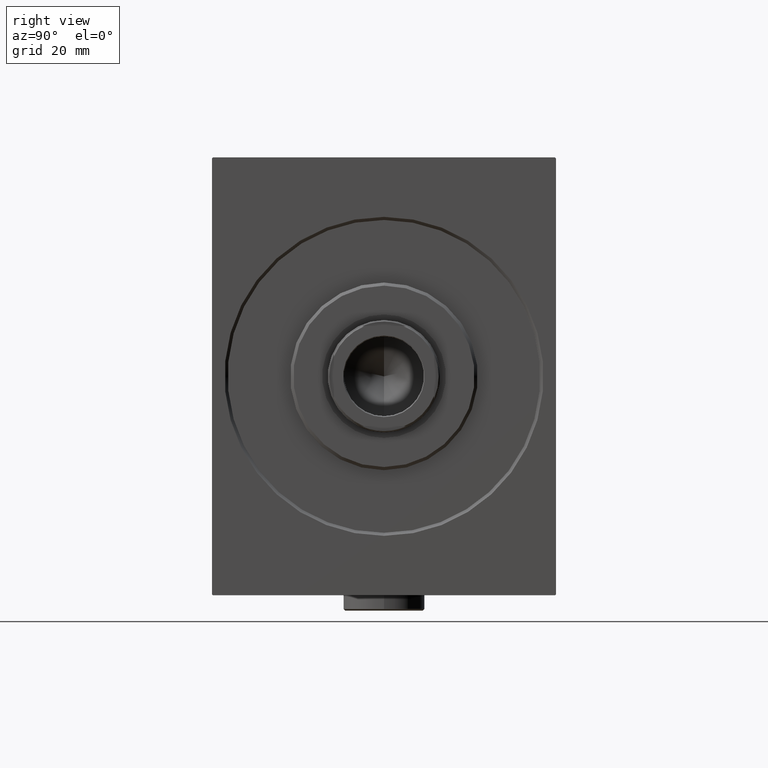
[diagram: clean part render]
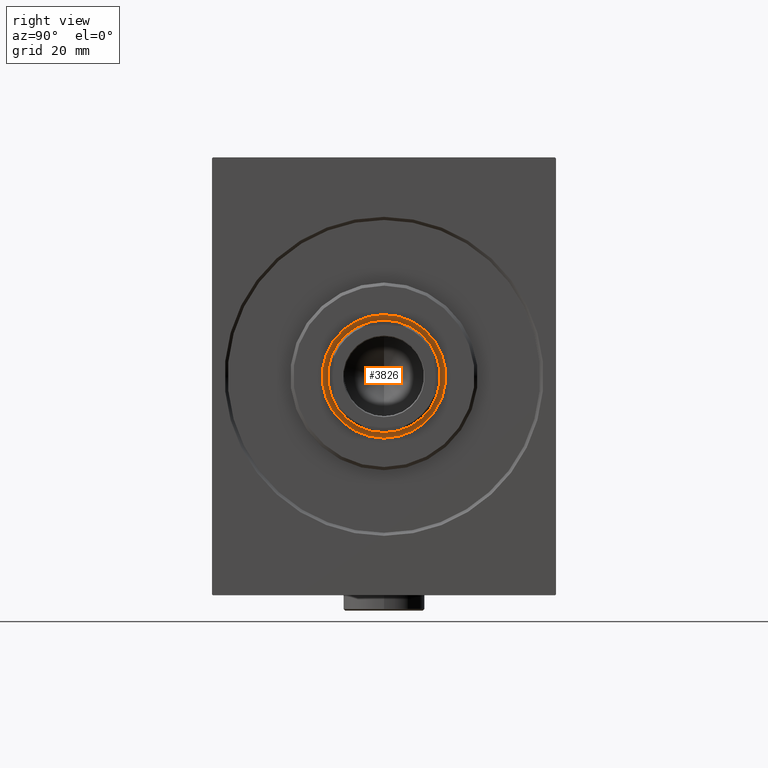
[diagram: same view with one face highlighted and labeled with its STEP entity id]
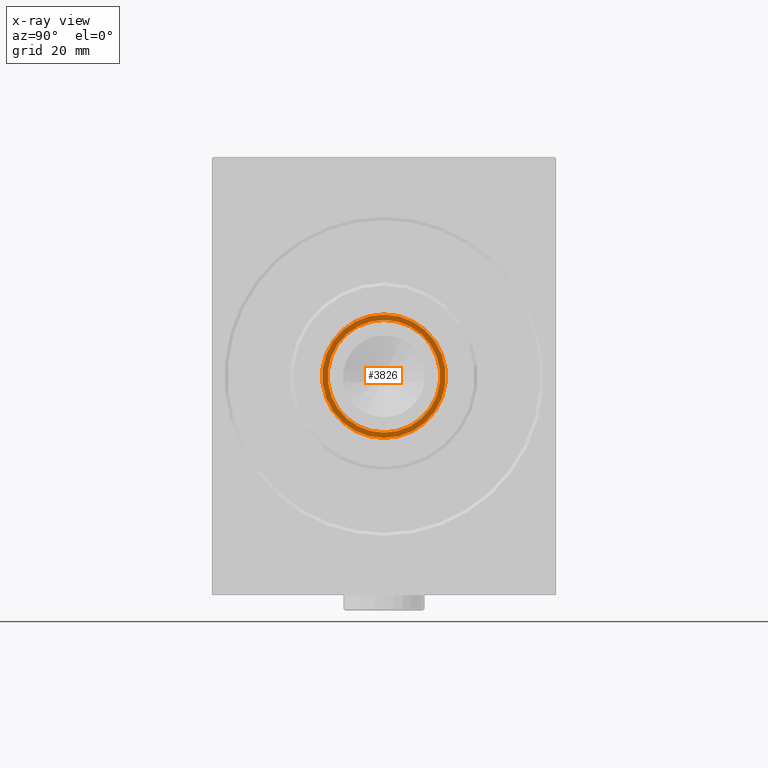
[diagram: x-ray of the same camera — body ghosted, the highlighted face saturated]
A machine part, right view. The second image highlights one B-rep face of the part: STEP entity #3826.
The next image is the same camera in x-ray: the body ghosted, the highlighted face saturated — about 0% of this face is hidden behind the body in this view.
In plain terms, the highlighted planar face has unit normal (1, 0, 0).
Its self-contained STEP definition (entity closure, byte-faithful):
#507 = EDGE_CURVE ( 'NONE', #41512, #854, #11116, .T. ) ;
#854 = VERTEX_POINT ( 'NONE', #24804 ) ;
#1797 = ORIENTED_EDGE ( 'NONE', *, *, #507, .F. ) ;
#3074 = DIRECTION ( 'NONE',  ( 0.000000000000000000, 0.000000000000000000, -1.000000000000000000 ) ) ;
#3528 = PLANE ( 'NONE',  #27562 ) ;
#3822 = AXIS2_PLACEMENT_3D ( 'NONE', #41885, #38541, #7804 ) ;
#3826 = ADVANCED_FACE ( 'NONE', ( #13987, #10422 ), #3528, .T. ) ;
#7804 = DIRECTION ( 'NONE',  ( 0.000000000000000000, 0.000000000000000000, -1.000000000000000000 ) ) ;
#8097 = EDGE_LOOP ( 'NONE', ( #32261, #1797 ) ) ;
#9044 = DIRECTION ( 'NONE',  ( 1.000000000000000000, 0.000000000000000000, 0.000000000000000000 ) ) ;
#10171 = DIRECTION ( 'NONE',  ( 0.000000000000000000, 0.000000000000000000, -1.000000000000000000 ) ) ;
#10197 = CIRCLE ( 'NONE', #35818, 19.75000000000000000 ) ;
#10422 = FACE_OUTER_BOUND ( 'NONE', #26676, .T. ) ;
#10926 = CIRCLE ( 'NONE', #3822, 19.75000000000000000 ) ;
#11116 = CIRCLE ( 'NONE', #16815, 18.00000000000000000 ) ;
#11501 = DIRECTION ( 'NONE',  ( 0.000000000000000000, 0.000000000000000000, -1.000000000000000000 ) ) ;
#12380 = CARTESIAN_POINT ( 'NONE',  ( 1.500000000000001332, 0.000000000000000000, 0.000000000000000000 ) ) ;
#13871 = CARTESIAN_POINT ( 'NONE',  ( 1.500000000000001332, 2.204364238465235033E-15, 18.00000000000000000 ) ) ;
#13987 = FACE_BOUND ( 'NONE', #8097, .T. ) ;
#14522 = EDGE_CURVE ( 'NONE', #20984, #33636, #10926, .T. ) ;
#16603 = ORIENTED_EDGE ( 'NONE', *, *, #23264, .T. ) ;
#16815 = AXIS2_PLACEMENT_3D ( 'NONE', #20436, #27103, #10171 ) ;
#20436 = CARTESIAN_POINT ( 'NONE',  ( 1.500000000000001332, 0.000000000000000000, 0.000000000000000000 ) ) ;
#20984 = VERTEX_POINT ( 'NONE', #23426 ) ;
#22638 = DIRECTION ( 'NONE',  ( 0.000000000000000000, 0.000000000000000000, -1.000000000000000000 ) ) ;
#23264 = EDGE_CURVE ( 'NONE', #33636, #20984, #10197, .T. ) ;
#23426 = CARTESIAN_POINT ( 'NONE',  ( 1.500000000000000000, 0.000000000000000000, 19.75000000000000000 ) ) ;
#23556 = DIRECTION ( 'NONE',  ( 1.000000000000000000, 0.000000000000000000, 0.000000000000000000 ) ) ;
#24804 = CARTESIAN_POINT ( 'NONE',  ( 1.500000000000001332, 0.000000000000000000, -18.00000000000000000 ) ) ;
#26676 = EDGE_LOOP ( 'NONE', ( #35741, #16603 ) ) ;
#27103 = DIRECTION ( 'NONE',  ( 1.000000000000000000, 0.000000000000000000, 0.000000000000000000 ) ) ;
#27562 = AXIS2_PLACEMENT_3D ( 'NONE', #33614, #23556, #3074 ) ;
#28870 = CARTESIAN_POINT ( 'NONE',  ( 1.500000000000000000, 0.000000000000000000, 0.000000000000000000 ) ) ;
#29877 = CARTESIAN_POINT ( 'NONE',  ( 1.500000000000000000, 2.418677428316022331E-15, -19.75000000000000000 ) ) ;
#32261 = ORIENTED_EDGE ( 'NONE', *, *, #37700, .F. ) ;
#32509 = AXIS2_PLACEMENT_3D ( 'NONE', #12380, #9044, #22638 ) ;
#33614 = CARTESIAN_POINT ( 'NONE',  ( 1.500000000000000000, 0.000000000000000000, 0.000000000000000000 ) ) ;
#33636 = VERTEX_POINT ( 'NONE', #29877 ) ;
#35741 = ORIENTED_EDGE ( 'NONE', *, *, #14522, .T. ) ;
#35818 = AXIS2_PLACEMENT_3D ( 'NONE', #28870, #42693, #11501 ) ;
#37700 = EDGE_CURVE ( 'NONE', #854, #41512, #38212, .T. ) ;
#38212 = CIRCLE ( 'NONE', #32509, 18.00000000000000000 ) ;
#38541 = DIRECTION ( 'NONE',  ( 1.000000000000000000, 0.000000000000000000, 0.000000000000000000 ) ) ;
#41512 = VERTEX_POINT ( 'NONE', #13871 ) ;
#41885 = CARTESIAN_POINT ( 'NONE',  ( 1.500000000000000000, 0.000000000000000000, 0.000000000000000000 ) ) ;
#42693 = DIRECTION ( 'NONE',  ( 1.000000000000000000, 0.000000000000000000, 0.000000000000000000 ) ) ;